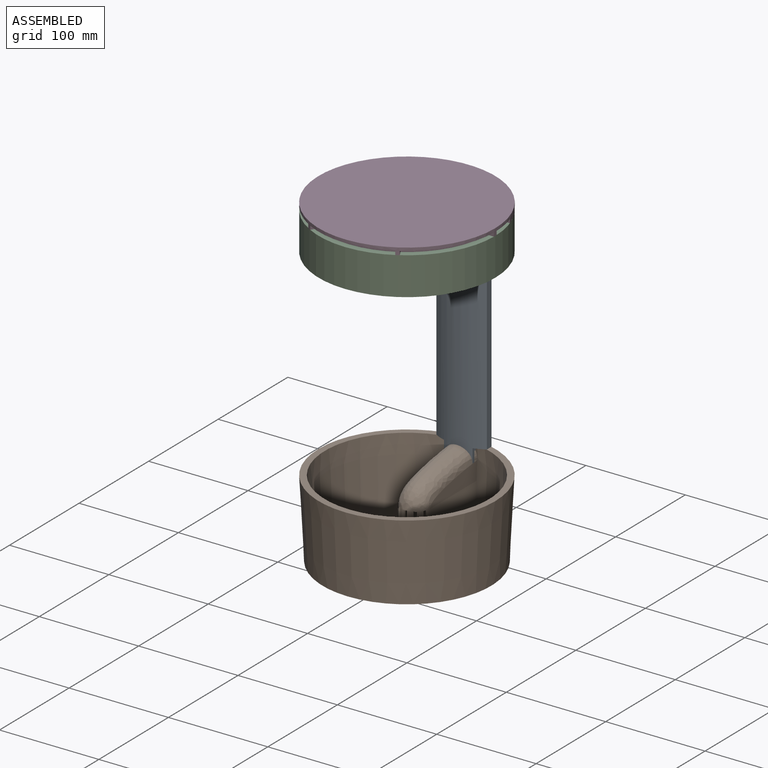
[diagram: assembled view]
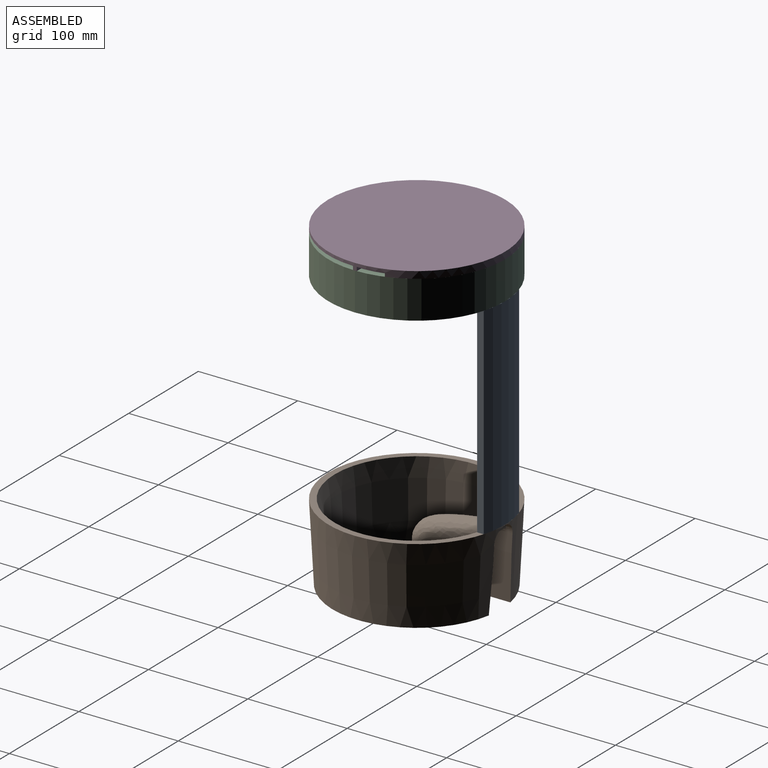
[diagram: assembled view, second angle]
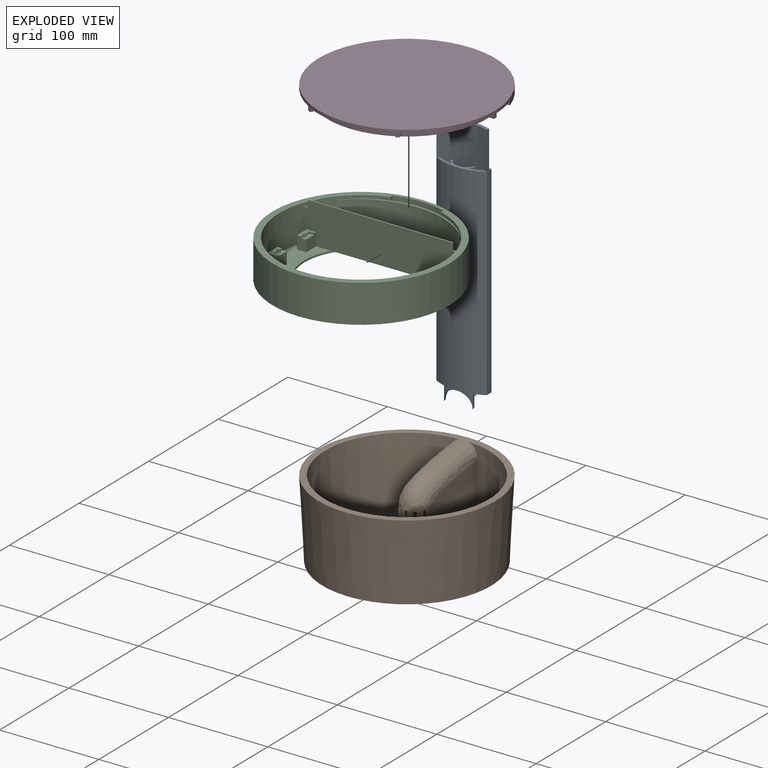
[diagram: exploded view]
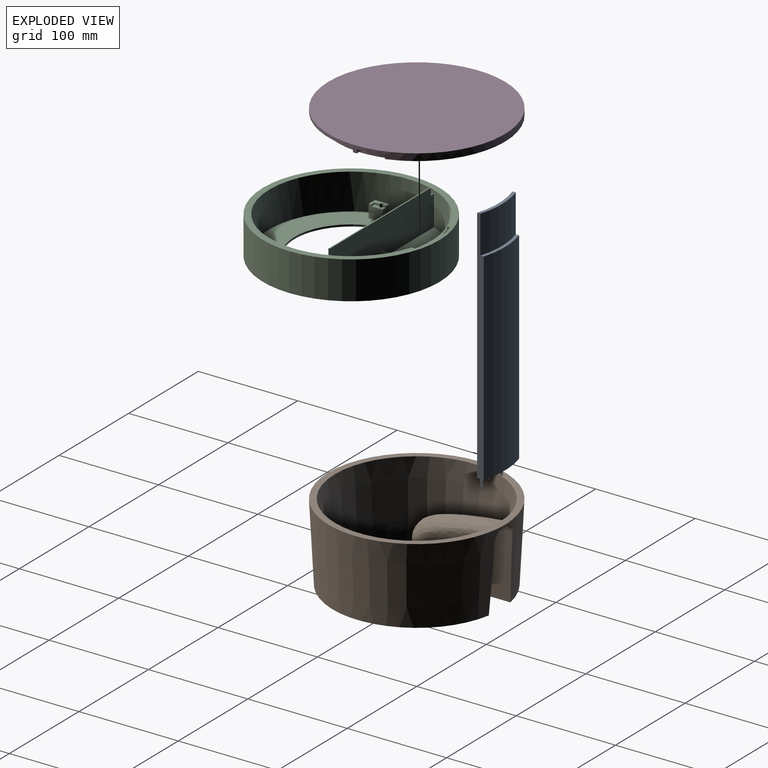
[diagram: exploded view, second angle]
ASSEMBLY  parts=4 mates=6
PART A: 27 faces, bbox 50.8x255.3x19.2 mm
  f0: plane 50.8x15.09mm, normal (0,1,0), area 379.1mm2, adj f3,f4,f6,f7,f8,f9,f14,f18
  f1: plane 6.27x2.64mm, normal (0,1,0), area 12mm2, adj f2,f5,f14,f16,f24,f26
  f2: cylinder r=48.26mm len=0.02mm, axis (0,-1,0), area 0mm2, adj f1,f22,f26
  f3: cylinder r=82.55mm len=241.3mm, axis (0,1,0), area 10180.5mm2, adj f0,f4,f6,f7,f9,f10,f13,f15
  f4: cylinder r=48.26mm len=216.87mm, axis (0,-1,0), area 3090.5mm2, adj f0,f3,f13,f20,f22,f25
  f5: cylinder r=48.26mm len=6.23mm, axis (0,-1,0), area 1.4mm2, adj f1,f19,f22
  f6: cylinder r=48.26mm len=216.87mm, axis (0,-1,0), area 3090.6mm2, adj f0,f3,f13,f17,f19,f23
  f7: plane 241.3x6.65mm, normal (1,0,0), area 1477.7mm2, adj f0,f3,f8,f10,f11,f12,f14
  f8: cylinder r=88.9mm len=203.2mm, axis (0,1,0), area 10468.4mm2, adj f0,f7,f9,f12
  f9: plane 241.3x6.65mm, normal (-1,0,0), area 1477.7mm2, adj f0,f3,f8,f10,f11,f12,f14
  f10: plane 50.8x7.17mm, normal (0,-1,0), area 163.6mm2, adj f3,f7,f9,f11
  f11: cylinder r=85.72mm len=50.8mm, axis (0,-1,0), area 1965mm2, adj f7,f9,f10,f12
  f12: plane 50.8x7.03mm, normal (0,-1,0), area 163.9mm2, adj f7,f8,f9,f11
  f13: plane 50.8x10.17mm, normal (0,-1,0), area 165.2mm2, adj f3,f4,f6,f14,f15,f17,f20
  f14: cylinder r=50.8mm len=217.16mm, axis (0,-1,0), area 10896.4mm2, adj f0,f1,f7,f9,f13,f19,f22,f23
  f15: cylinder r=10.69mm len=206.34mm, axis (0,-1,0), area 5594.1mm2, adj f3,f13,f18,f19,f21,f22
  f16: cylinder r=48.26mm len=0.02mm, axis (0,-1,0), area 0mm2, adj f1,f19,f24
  f17: cylinder r=12.7mm len=208.92mm, axis (0,-1,0), area 1706.6mm2, adj f3,f6,f13,f18,f19
  f18: cylinder r=82.55mm len=5.72mm, axis (0,-1,0), area 8.8mm2, adj f0,f15,f17,f19
  f19: bspline ~14.96x14.83mm, area 78.2mm2, adj f5,f6,f14,f15,f16,f17,f18,f23
  f20: cylinder r=12.7mm len=208.92mm, axis (0,-1,0), area 1706.6mm2, adj f3,f4,f13,f21,f22
  f21: cylinder r=82.55mm len=5.72mm, axis (0,-1,0), area 8.8mm2, adj f0,f15,f20,f22
  f22: bspline ~14.96x14.83mm, area 78.2mm2, adj f2,f4,f5,f14,f15,f20,f21,f25
  f23: plane 13.97x2.66mm, normal (-1,0,0), area 36.7mm2, adj f0,f6,f14,f19
  f24: cylinder r=22.11mm len=2.62mm, axis (0,-1,0), area 0mm2, adj f1,f14,f16,f19
  f25: plane 13.97x2.66mm, normal (1,0,0), area 36.7mm2, adj f0,f4,f14,f22
  f26: cylinder r=22.11mm len=2.62mm, axis (0,-1,0), area 0mm2, adj f1,f2,f14,f22
PART B: 65 faces, bbox 177.8x177.8x93.2 mm
  f0: plane 0.42x0.04mm, normal (-1,0.01,0.09), area 0mm2, adj f7,f8,f10
  f1: plane 0.42x0.04mm, normal (1,0.01,0.09), area 0mm2, adj f6,f8,f9
  f2: bspline ~102.39x46.8mm, area 3839.5mm2, adj f4,f5,f13,f15,f16,f17,f18,f19
  f3: cylinder r=13.09mm len=23.7mm, axis (0,-1,0.06), area 200mm2, adj f8,f11,f12,f32,f58,f59
  f4: plane 6.18x4.9mm, normal (0,-1,0.06), area 11.6mm2, adj f2,f13,f22,f62,f63
  f5: plane 6.18x4.9mm, normal (0,-1,0.06), area 11.6mm2, adj f2,f22,f24,f60,f61
  f6: plane 0.02x0mm, normal (0,-0.06,-1), area 0mm2, adj f1,f8,f9
  f7: plane 0.02x0mm, normal (0,-0.06,-1), area 0mm2, adj f0,f8,f10
  f8: cone r=88.9mm half-angle=3deg, axis (0,0,1), area 40600.1mm2, adj f0,f1,f3,f6,f7,f9,f10,f11
  f9: plane 0.42x0.04mm, normal (0,1,-0.06), area 0mm2, adj f1,f6,f8
  f10: plane 0.42x0.04mm, normal (0,1,-0.06), area 0mm2, adj f0,f7,f8
  f11: plane 6.4x0.47mm, normal (1,0,-0.05), area 0.1mm2, adj f3,f8,f20,f32,f56,f59
  f12: plane 6.4x0.47mm, normal (-1,0,-0.05), area 0.1mm2, adj f3,f8,f29,f32,f55,f58
  f13: plane 4.74x0.29mm, normal (1,0,-0.05), area 0mm2, adj f2,f4,f21
  f14: plane 73.55x46.36mm, normal (-1,0,-0.05), area 3347.7mm2, adj f8,f25,f31,f34
  f15: cone r=12.7mm half-angle=3deg, axis (0,0,-1), area 284.5mm2, adj f2,f30,f47,f49
  f16: cone r=12.7mm half-angle=3deg, axis (0,0,-1), area 284.5mm2, adj f2,f30,f38,f46
  f17: cone r=12.7mm half-angle=3deg, axis (0,0,-1), area 232.7mm2, adj f2,f28,f30,f43
  f18: cone r=12.7mm half-angle=3deg, axis (0,0,-1), area 284.5mm2, adj f2,f30,f40,f44
  f19: cone r=12.7mm half-angle=3deg, axis (0,0,-1), area 284.5mm2, adj f2,f30,f37,f41
  f20: cone r=82.55mm half-angle=3deg, axis (0,0,1), area 0.1mm2, adj f11,f32,f36,f56,f57
  f21: cone r=82.55mm half-angle=3deg, axis (0,0,1), area 36353mm2, adj f2,f13,f22,f24,f26,f28,f30,f33
  f22: plane 177.8x177.8mm, normal (0,0,1), area 3506.5mm2, adj f2,f4,f5,f8,f21,f64
  f23: plane 73.55x46.36mm, normal (1,0,-0.05), area 3347.7mm2, adj f8,f25,f31,f36
  f24: plane 4.74x0.29mm, normal (-1,0,-0.05), area 0mm2, adj f2,f5,f21
  f25: cone r=11.43mm half-angle=3deg, axis (0,0,-1), area 1518mm2, adj f14,f23,f30,f31,f32,f37,f38,f40
  f26: plane 66.9x44.45mm, normal (1,0,0.05), area 2915mm2, adj f21,f27,f30,f33
  f27: cone r=12.7mm half-angle=3deg, axis (0,0,-1), area 232.7mm2, adj f2,f26,f30,f50
  f28: plane 66.9x44.45mm, normal (-1,0,0.05), area 2915mm2, adj f17,f21,f30,f35
  f29: cone r=82.55mm half-angle=3deg, axis (0,0,1), area 0.1mm2, adj f12,f32,f34,f54,f55
  f30: plane 157.11x155.32mm, normal (0,0,1), area 16786.7mm2, adj f15,f16,f17,f18,f19,f21,f25,f26
  f31: plane 169.61x168.18mm, normal (0,0,-1), area 19992.5mm2, adj f8,f14,f23,f25
  f32: bspline ~99.85x44.35mm, area 3517.6mm2, adj f3,f11,f12,f20,f25,f29,f34,f36
  f33: plane 67.95x18.57mm, normal (1,0,0), area 865.1mm2, adj f2,f21,f26
  f34: plane 74.51x18.59mm, normal (-1,0,0), area 986.9mm2, adj f8,f14,f29,f32,f54,f55
  f35: plane 67.95x18.57mm, normal (-1,0,0), area 865.1mm2, adj f2,f21,f28
  f36: plane 74.51x18.59mm, normal (1,0,0), area 986.9mm2, adj f8,f20,f23,f32,f56,f57
  f37: plane 44.47x3.63mm, normal (1,0,0), area 56.7mm2, adj f19,f25,f30,f39
  f38: plane 44.47x3.63mm, normal (-1,0,0), area 56.7mm2, adj f16,f25,f30,f39
  f39: plane 2.54x1.33mm, normal (0,0,-1), area 3.2mm2, adj f2,f32,f37,f38
  f40: plane 44.47x3.05mm, normal (0.84,-0.54,0), area 56.7mm2, adj f18,f25,f30,f42
  f41: plane 44.47x3.05mm, normal (-0.84,0.54,0), area 56.7mm2, adj f19,f25,f30,f42
  f42: plane 2.83x2.45mm, normal (0,0,-1), area 3.2mm2, adj f2,f32,f40,f41
  f43: plane 44.47x3.32mm, normal (0.41,-0.91,0), area 56.7mm2, adj f17,f25,f30,f45
  f44: plane 44.47x3.32mm, normal (-0.41,0.91,0), area 56.7mm2, adj f18,f25,f30,f45
  f45: plane 2.84x2.2mm, normal (0,0,-1), area 3.2mm2, adj f2,f32,f43,f44
  f46: plane 44.47x3.05mm, normal (0.84,0.54,0), area 56.7mm2, adj f16,f25,f30,f48
  f47: plane 44.47x3.05mm, normal (-0.84,-0.54,0), area 56.7mm2, adj f15,f25,f30,f48
  f48: plane 2.83x2.45mm, normal (0,0,-1), area 3.2mm2, adj f2,f32,f46,f47
  f49: plane 44.47x3.32mm, normal (0.41,0.91,0), area 56.7mm2, adj f15,f25,f30,f51
  f50: plane 44.47x3.32mm, normal (-0.41,-0.91,0), area 56.7mm2, adj f25,f27,f30,f51
  f51: plane 2.84x2.2mm, normal (0,0,-1), area 3.2mm2, adj f2,f32,f49,f50
  f52: plane 24.87x8.97mm, normal (0,1,-0.06), area 0.4mm2, adj f32,f53
  f53: cylinder r=13.09mm len=24.87mm, axis (0,1,-0.06), area 3.1mm2, adj f32,f52
  f54: plane 3.17x0.2mm, normal (0,1,-0.06), area 0.1mm2, adj f29,f34,f55
  f55: cylinder r=13.09mm len=6.87mm, axis (0,1,-0.06), area 37.1mm2, adj f8,f12,f29,f34,f54
  f56: cylinder r=13.09mm len=6.87mm, axis (0,1,-0.06), area 37.1mm2, adj f8,f11,f20,f36,f57
  f57: plane 3.17x0.2mm, normal (0,1,-0.06), area 0.1mm2, adj f20,f36,f56
  f58: plane 0x0mm, normal (0,-1,0.06), area 0mm2, adj f3,f12
  f59: plane 0x0mm, normal (0,-1,0.06), area 0mm2, adj f3,f11
  f60: plane 0.05x0.01mm, normal (0,-0.06,-1), area 0mm2, adj f5,f21,f61
  f61: plane 0.15x0.05mm, normal (-0.12,-0.99,0.06), area 0mm2, adj f5,f21,f60
  f62: plane 0.02x0mm, normal (0,-0.06,-1), area 0mm2, adj f4,f21,f63
  f63: plane 0.15x0.02mm, normal (0.07,-1,0.06), area 0mm2, adj f4,f21,f62
  f64: cylinder r=72.87mm len=4.4mm, axis (0,0,-1), area 0.5mm2, adj f2,f22
PART C: 65 faces, bbox 177.8x41.9x177.8 mm
  f0: plane 5.24x1.27mm, normal (0,-1,0), area 6mm2, adj f2,f57,f58,f62
  f1: plane 5.24x1.27mm, normal (0,-1,0), area 6mm2, adj f2,f57,f58,f63
  f2: cylinder r=82.55mm len=165.1mm, axis (0,1,0), area 13628.8mm2, adj f0,f1,f3,f5,f11,f12,f13,f56
  f3: plane 165.1x110.55mm, normal (0,-1,0), area 6511.8mm2, adj f2,f14,f16,f17,f18,f21,f22,f23
  f4: plane 23.05x8.13mm, normal (0,-1,0), area 133.6mm2, adj f5,f61
  f5: cylinder r=86.75mm len=127mm, axis (0,1,0), area 4616.4mm2, adj f2,f4,f56,f60,f61
  f6: plane 11.49x4.85mm, normal (0,-1,0), area 50mm2, adj f30,f31,f32,f52,f53,f54
  f7: plane 11.49x4.85mm, normal (0,-1,0), area 50mm2, adj f17,f18,f19,f44,f45,f46
  f8: plane 177.8x177.8mm, normal (0,1,0), area 14404.3mm2, adj f9,f10,f11,f12,f14,f15
  f9: cylinder r=88.9mm len=177.8mm, axis (0,1,0), area 21281.7mm2, adj f8,f13
  f10: cylinder r=85.72mm len=50.8mm, axis (0,1,0), area 1965mm2, adj f8,f11,f12,f13
  f11: plane 38.1x3.32mm, normal (1,0,0), area 126.7mm2, adj f2,f8,f10,f13,f15
  f12: plane 38.1x3.32mm, normal (-1,0,0), area 126.7mm2, adj f2,f8,f10,f13,f15
  f13: plane 177.8x177.8mm, normal (0,-1,0), area 3256.7mm2, adj f2,f9,f10,f11,f12
  f14: cylinder r=57.15mm len=114.3mm, axis (0,1,0), area 684.1mm2, adj f3,f8,f59
  f15: cylinder r=82.55mm len=50.8mm, axis (0,1,0), area 1803.4mm2, adj f8,f11,f12,f56
  f16: plane 14.09x13.01mm, normal (-1,0,0), area 183.2mm2, adj f3,f17,f47,f57
  f17: plane 13.01x9.36mm, normal (0,0,-1), area 114mm2, adj f3,f7,f16,f18,f44,f47
  f18: plane 14.09x13.01mm, normal (1,0,0), area 165.1mm2, adj f3,f7,f17,f45,f47,f57
  f19: cylinder r=1.91mm len=13mm, axis (0,1,0), area 146.2mm2, adj f7,f20,f44,f46,f47
  f20: plane 3.81x3.81mm, normal (0,-1,0), area 11.4mm2, adj f19
  f21: plane 14.09x13.01mm, normal (1,0,0), area 165.1mm2, adj f3,f22,f24,f26,f41,f43
  f22: plane 13.01x9.36mm, normal (0,0,1), area 114mm2, adj f3,f21,f23,f26,f40,f43
  f23: plane 14.09x13.01mm, normal (-1,0,0), area 183.2mm2, adj f3,f22,f24,f43
  f24: plane 13.01x9.36mm, normal (0,0,-1), area 121.7mm2, adj f3,f21,f23,f43
  f25: cylinder r=1.91mm len=13mm, axis (0,1,0), area 146.2mm2, adj f26,f27,f40,f42,f43
  f26: plane 11.49x4.85mm, normal (0,-1,0), area 50mm2, adj f21,f22,f25,f40,f41,f42
  f27: plane 3.81x3.81mm, normal (0,-1,0), area 11.4mm2, adj f25
  f28: plane 13.01x9.36mm, normal (0,0,-1), area 121.7mm2, adj f3,f29,f31,f55
  f29: plane 14.09x13.01mm, normal (1,0,0), area 183.2mm2, adj f3,f28,f30,f55
  f30: plane 13.01x9.36mm, normal (0,0,1), area 114mm2, adj f3,f6,f29,f31,f54,f55
  f31: plane 14.09x13.01mm, normal (-1,0,0), area 165.1mm2, adj f3,f6,f28,f30,f52,f55
  f32: cylinder r=1.91mm len=13mm, axis (0,1,0), area 146.2mm2, adj f6,f33,f53,f54,f55
  f33: plane 3.81x3.81mm, normal (0,-1,0), area 11.4mm2, adj f32
  f34: plane 14.09x13.01mm, normal (-1,0,0), area 165.1mm2, adj f3,f35,f38,f48,f51,f57
  f35: plane 13.01x9.36mm, normal (0,0,-1), area 114mm2, adj f3,f34,f36,f38,f50,f51
  f36: plane 14.09x13.01mm, normal (1,0,0), area 183.2mm2, adj f3,f35,f51,f57
  f37: cylinder r=1.91mm len=13mm, axis (0,1,0), area 146.2mm2, adj f38,f39,f49,f50,f51
  f38: plane 11.49x4.85mm, normal (0,-1,0), area 50mm2, adj f34,f35,f37,f48,f49,f50
  f39: plane 3.81x3.81mm, normal (0,-1,0), area 11.4mm2, adj f37
  f40: plane 2.6x1.57mm, normal (1,0,0), area 4.1mm2, adj f22,f25,f26,f43
  f41: plane 4.85x1.57mm, normal (0,0,1), area 7.6mm2, adj f21,f26,f42,f43
  f42: plane 5.08x1.57mm, normal (1,0,0), area 8mm2, adj f25,f26,f41,f43
  f43: plane 14.09x9.36mm, normal (0,-1,0), area 70.4mm2, adj f21,f22,f23,f24,f25,f40,f41,f42
  f44: plane 2.6x1.57mm, normal (1,0,0), area 4.1mm2, adj f7,f17,f19,f47
  f45: plane 4.85x1.57mm, normal (0,0,-1), area 7.6mm2, adj f7,f18,f46,f47
  f46: plane 5.08x1.57mm, normal (1,0,0), area 8mm2, adj f7,f19,f45,f47
  f47: plane 14.09x9.36mm, normal (0,-1,0), area 70.4mm2, adj f16,f17,f18,f19,f44,f45,f46,f57
  f48: plane 4.85x1.57mm, normal (0,0,-1), area 7.6mm2, adj f34,f38,f49,f51
  f49: plane 5.08x1.57mm, normal (-1,0,0), area 8mm2, adj f37,f38,f48,f51
  f50: plane 2.6x1.57mm, normal (-1,0,0), area 4.1mm2, adj f35,f37,f38,f51
  f51: plane 14.09x9.36mm, normal (0,-1,0), area 70.4mm2, adj f34,f35,f36,f37,f48,f49,f50,f57
  f52: plane 4.85x1.57mm, normal (0,0,1), area 7.6mm2, adj f6,f31,f53,f55
  f53: plane 5.08x1.57mm, normal (-1,0,0), area 8mm2, adj f6,f32,f52,f55
  f54: plane 2.6x1.57mm, normal (-1,0,0), area 4.1mm2, adj f6,f30,f32,f55
  f55: plane 14.09x9.36mm, normal (0,-1,0), area 70.4mm2, adj f28,f29,f30,f31,f32,f52,f53,f54
  f56: plane 127x30.16mm, normal (0,-1,0), area 203.9mm2, adj f2,f5,f15
  f57: plane 155.31x40.01mm, normal (0,0,-1), area 5903.7mm2, adj f0,f1,f2,f3,f16,f18,f34,f36
  f58: plane 154.37x37.52mm, normal (0,0,1), area 5725.5mm2, adj f0,f1,f2,f60,f62,f63,f64
  f59: plane 99.64x29.15mm, normal (0,1,0), area 2063.1mm2, adj f14,f57
  f60: plane 154.37x50.36mm, normal (0,-1,0.04), area 5642.9mm2, adj f2,f5,f58,f61
  f61: cylinder r=12.7mm len=23.05mm, axis (0,1,0), area 14.3mm2, adj f4,f5,f60
  f62: cylinder r=78.1mm len=6.99mm, axis (0,1,0), area 9.5mm2, adj f0,f57,f58,f64
  f63: cylinder r=78.1mm len=6.99mm, axis (0,1,0), area 9.5mm2, adj f1,f57,f58,f64
  f64: plane 145.83x1.27mm, normal (0,-1,0), area 184.6mm2, adj f57,f58,f62,f63
PART D: 31 faces, bbox 177.8x10.2x177.8 mm
  f0: cone r=82.55mm half-angle=3deg, axis (0,-1,0), area 645.2mm2, adj f1,f3,f4,f9
  f1: plane 9.26x6.99mm, normal (0,0,-1), area 42.5mm2, adj f0,f2,f4,f9,f15,f30
  f2: cylinder r=80.14mm len=160.27mm, axis (0,-1,0), area 2094.4mm2, adj f1,f3,f4,f10,f11,f12,f13,f16
  f3: plane 9.26x6.99mm, normal (0,0,-1), area 42.5mm2, adj f0,f2,f4,f9,f15,f25
  f4: plane 162.32x160.27mm, normal (0,1,0), area 937.3mm2, adj f0,f1,f2,f3,f5,f6,f7,f8
  f5: cylinder r=80.64mm len=150.29mm, axis (0,-1,0), area 614.2mm2, adj f4,f6,f8,f14
  f6: plane 3.18x2.73mm, normal (0,0,1), area 8.7mm2, adj f4,f5,f7,f14
  f7: cylinder r=78.1mm len=156.21mm, axis (0,-1,0), area 2839.3mm2, adj f4,f6,f8,f14,f24
  f8: plane 3.18x2.73mm, normal (0,0,1), area 8.7mm2, adj f4,f5,f7,f14
  f9: plane 169.25x61.66mm, normal (0,1,0), area 1398.7mm2, adj f0,f1,f3,f15
  f10: plane 8.78x3.81mm, normal (0,1,0), area 31.7mm2, adj f2,f15,f16,f17
  f11: plane 9.4x7.52mm, normal (0,1,0), area 31.7mm2, adj f2,f15,f18,f19
  f12: plane 9.4x7.52mm, normal (0,1,0), area 31.7mm2, adj f2,f15,f20,f21
  f13: plane 8.78x3.81mm, normal (0,1,0), area 31.7mm2, adj f2,f15,f22,f23
  f14: plane 150.29x51.38mm, normal (0,1,0), area 481.1mm2, adj f5,f6,f7,f8
  f15: cylinder r=88.9mm len=177.8mm, axis (0,1,0), area 2684.7mm2, adj f1,f3,f9,f10,f11,f12,f13,f16
  f16: plane 8.76x3.81mm, normal (0.02,0,1), area 33.4mm2, adj f2,f10,f15,f25
  f17: plane 8.76x3.81mm, normal (0.02,0,-1), area 33.4mm2, adj f2,f10,f15,f26
  f18: plane 7.49x4.54mm, normal (-0.86,0,0.52), area 33.4mm2, adj f2,f11,f15,f26
  f19: plane 7.68x4.22mm, normal (0.88,0,-0.48), area 33.4mm2, adj f2,f11,f15,f27
  f20: plane 7.68x4.22mm, normal (-0.88,0,-0.48), area 33.4mm2, adj f2,f12,f15,f27
  f21: plane 7.49x4.54mm, normal (0.86,0,0.52), area 33.4mm2, adj f2,f12,f15,f28
  f22: plane 8.76x3.81mm, normal (-0.02,0,-1), area 33.4mm2, adj f2,f13,f15,f28
  f23: plane 8.76x3.81mm, normal (-0.02,0,1), area 33.4mm2, adj f2,f13,f15,f30
  f24: plane 156.21x156.21mm, normal (0,1,0), area 19164.9mm2, adj f7
  f25: plane 25.52x13.51mm, normal (0,1,0), area 227.2mm2, adj f2,f3,f15,f16
  f26: plane 74.3x47.33mm, normal (0,1,0), area 743.8mm2, adj f2,f15,f17,f18
  f27: plane 85.58x18.66mm, normal (0,1,0), area 743.8mm2, adj f2,f15,f19,f20
  f28: plane 74.3x47.33mm, normal (0,1,0), area 743.8mm2, adj f2,f15,f21,f22
  f29: plane 177.8x177.8mm, normal (0,-1,0), area 24828.7mm2, adj f15
  f30: plane 25.52x13.51mm, normal (0,1,0), area 227.2mm2, adj f1,f2,f15,f23
PLACE A rot(axis=(-1,0,0),90deg) t=(0,0,78.1)mm
PLACE B t=(0,0,1.9)mm
PLACE C rot(axis=(-1,0,0),90deg) t=(0,0,281.3)mm
PLACE D rot(axis=(-1,0,0),90deg) t=(0,0,319.41)mm
MATE slider D.f2 <-> C.f2  axis (0,0,1) through (0,0,326.39)mm
MATE fastened A.f8 <-> B.f8  axis (0,0,-1) through (0,0,78.1)mm
MATE planar D.f14 <-> C.f13  axis (0,0,-1) through (0,65.13,319.41)mm
MATE planar C.f58 <-> D.f8  axis (0,1,0) through (-72.41,29.27,316.23)mm
MATE fastened C.f2 <-> A.f3  axis (0,0,-1) through (0,0,300.36)mm
MATE planar A.f0 <-> B.f22  axis (0,0,-1) through (0,83.41,78.1)mm
